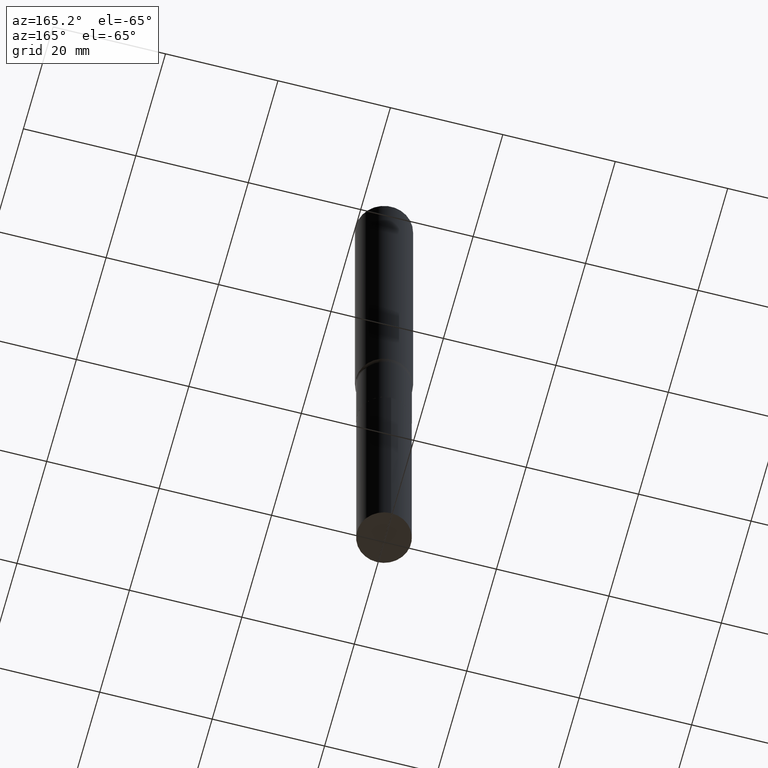
[diagram: clean part render]
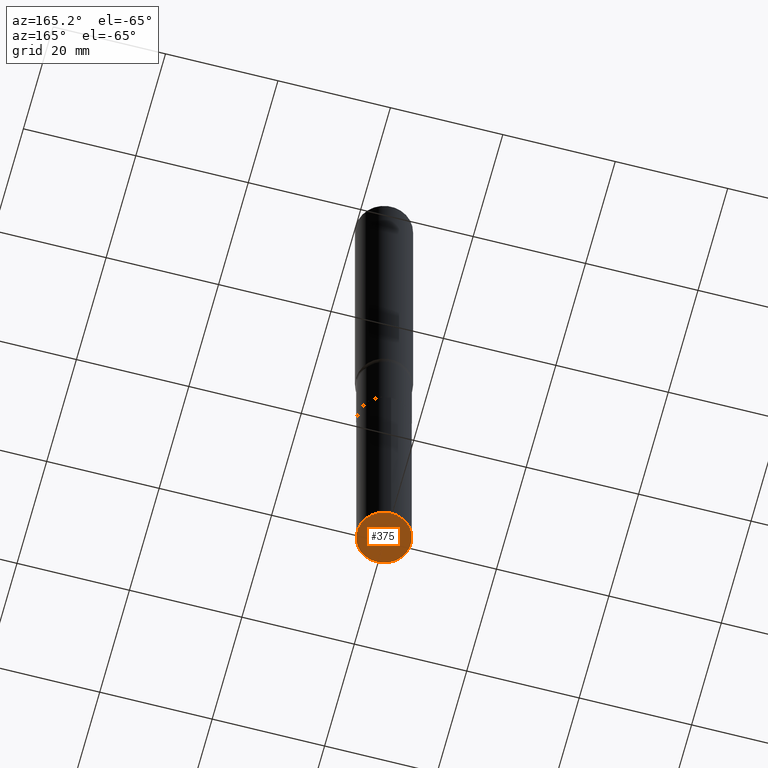
[diagram: same view with one face highlighted and labeled with its STEP entity id]
A machine part, auxiliary view. The second image highlights one B-rep face of the part: STEP entity #375.
In plain terms, the highlighted planar face has unit normal (-0, 0, 1).
Its self-contained STEP definition (entity closure, byte-faithful):
#18 = EDGE_LOOP ( 'NONE', ( #23, #235 ) ) ;
#20 = CIRCLE ( 'NONE', #194, 0.1889999999999999736 ) ;
#23 = ORIENTED_EDGE ( 'NONE', *, *, #315, .F. ) ;
#56 = AXIS2_PLACEMENT_3D ( 'NONE', #276, #424, #459 ) ;
#125 = CIRCLE ( 'NONE', #372, 0.1889999999999999736 ) ;
#129 = CARTESIAN_POINT ( 'NONE',  ( 1.342925770586686785E-15, 0.1889999999999828206, -4.921300000000002228 ) ) ;
#154 = DIRECTION ( 'NONE',  ( -6.982962677686265922E-15, -1.000000000000000000, 5.781688875479922944E-15 ) ) ;
#192 = VERTEX_POINT ( 'NONE', #438 ) ;
#194 = AXIS2_PLACEMENT_3D ( 'NONE', #267, #198, #266 ) ;
#198 = DIRECTION ( 'NONE',  ( -2.445466155500283131E-29, 3.491485134774723364E-15, 1.000000000000000000 ) ) ;
#202 = VERTEX_POINT ( 'NONE', #129 ) ;
#206 = EDGE_CURVE ( 'NONE', #202, #192, #125, .T. ) ;
#217 = FACE_OUTER_BOUND ( 'NONE', #18, .T. ) ;
#220 = CARTESIAN_POINT ( 'NONE',  ( 1.203488073211193522E-28, -1.718263413532219501E-14, -4.921300000000000452 ) ) ;
#235 = ORIENTED_EDGE ( 'NONE', *, *, #206, .F. ) ;
#266 = DIRECTION ( 'NONE',  ( -6.982962677686265922E-15, -1.000000000000000000, 5.781688875479922944E-15 ) ) ;
#267 = CARTESIAN_POINT ( 'NONE',  ( 1.203488073211193522E-28, -1.718263413532219501E-14, -4.921300000000000452 ) ) ;
#276 = CARTESIAN_POINT ( 'NONE',  ( -7.834035170096505340E-29, -4.563605257574812416E-14, -4.921300000000000452 ) ) ;
#315 = EDGE_CURVE ( 'NONE', #192, #202, #20, .T. ) ;
#367 = DIRECTION ( 'NONE',  ( -2.445466155500283131E-29, 3.491485134774723364E-15, 1.000000000000000000 ) ) ;
#372 = AXIS2_PLACEMENT_3D ( 'NONE', #220, #367, #154 ) ;
#375 = ADVANCED_FACE ( 'NONE', ( #217 ), #455, .F. ) ;
#424 = DIRECTION ( 'NONE',  ( -2.445466155500282851E-29, 3.491485134774723364E-15, 1.000000000000000000 ) ) ;
#438 = CARTESIAN_POINT ( 'NONE',  ( -1.319779946082583728E-15, -0.1890000000000171543, -4.921299999999999564 ) ) ;
#455 = PLANE ( 'NONE',  #56 ) ;
#459 = DIRECTION ( 'NONE',  ( -6.982962677686265922E-15, -1.000000000000000000, 3.491485134774723364E-15 ) ) ;